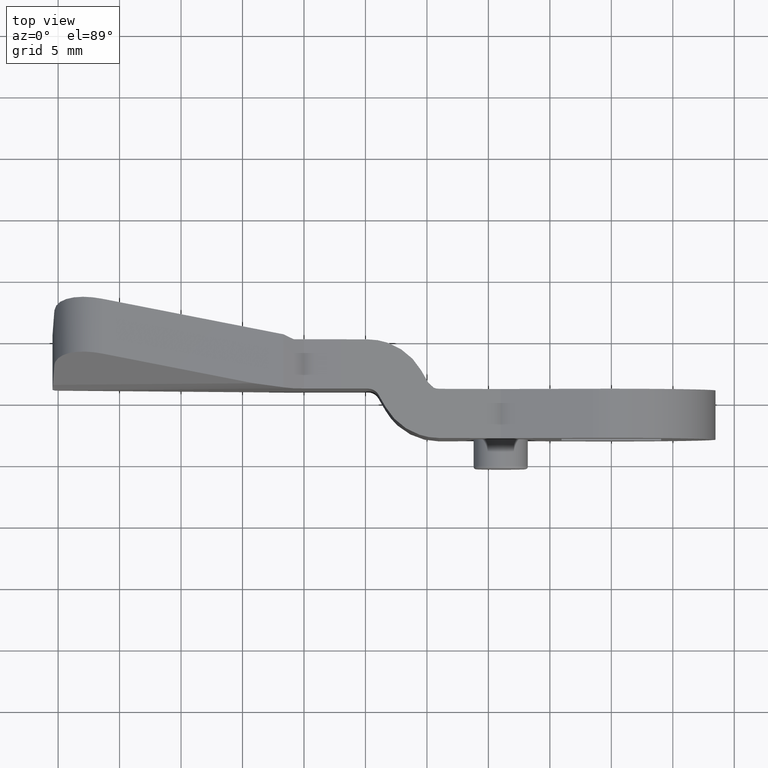
[diagram: clean part render]
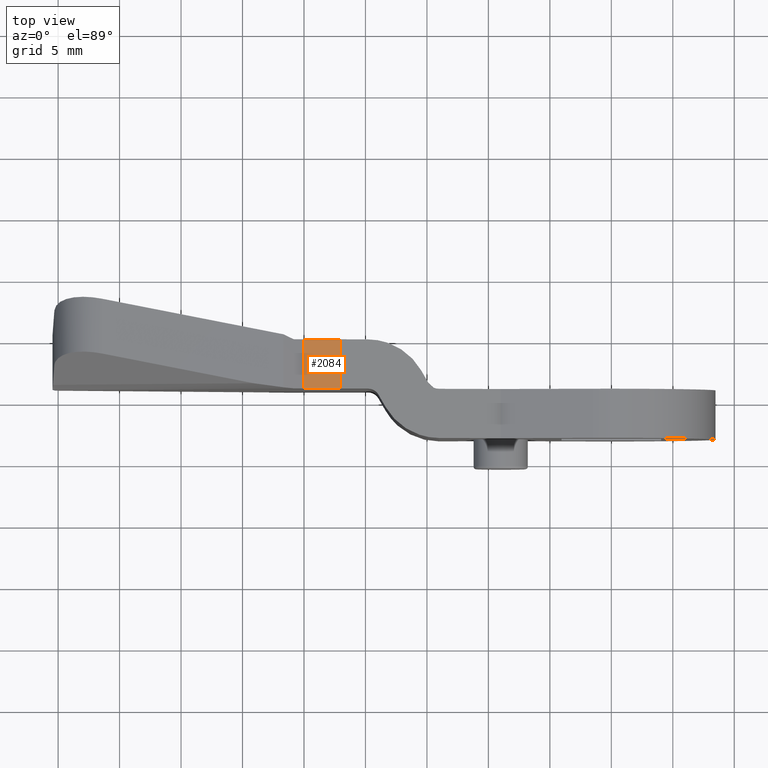
[diagram: same view with one face highlighted and labeled with its STEP entity id]
A machine part, top view. The second image highlights one B-rep face of the part: STEP entity #2084.
In plain terms, the highlighted face is a freeform B-spline surface patch.
Its self-contained STEP definition (entity closure, byte-faithful):
#1782=CARTESIAN_POINT('',(-25.000001187432851,-4.000000189989695,9.500000451225802));
#1783=VERTEX_POINT('',#1782);
#1789=CARTESIAN_POINT('',(-25.000001187432851,0.0,9.500000451225802));
#1790=VERTEX_POINT('',#1789);
#1791=CARTESIAN_POINT('',(-25.000001187432851,-4.000000189989695,9.500000451225802));
#1792=CARTESIAN_POINT('',(-25.000001187432851,0.0,9.500000451225802));
#1793=QUASI_UNIFORM_CURVE('',1,(#1791,#1792),.UNSPECIFIED.,.F.,.U.);
#1794=EDGE_CURVE('',#1783,#1790,#1793,.T.);
#2022=CARTESIAN_POINT('',(-22.000001044943499,1.110223E-013,9.500000451225791));
#2023=VERTEX_POINT('',#2022);
#2029=CARTESIAN_POINT('',(-22.000001044943499,-4.000000189989695,9.500000451225791));
#2030=VERTEX_POINT('',#2029);
#2031=CARTESIAN_POINT('',(-22.000001044943499,1.110223E-013,9.500000451225791));
#2032=CARTESIAN_POINT('',(-22.000001044943499,-4.000000189989695,9.500000451225791));
#2033=QUASI_UNIFORM_CURVE('',1,(#2031,#2032),.UNSPECIFIED.,.F.,.U.);
#2034=EDGE_CURVE('',#2023,#2030,#2033,.T.);
#2065=CARTESIAN_POINT('',(-25.149851906233259,-4.199800003981210,9.500000451225802));
#2066=CARTESIAN_POINT('',(-21.850151828180209,-4.199800003981210,9.500000451225802));
#2067=CARTESIAN_POINT('',(-25.149851906233259,0.199800100093935,9.500000451225802));
#2068=CARTESIAN_POINT('',(-21.850151828180209,0.199800100093935,9.500000451225802));
#2069=B_SPLINE_SURFACE_WITH_KNOTS('',1,1,((#2065,#2067),(#2066,#2068)),.UNSPECIFIED.,.F.,.F.,.U.,(2,2),(2,2),(0.0,3.299700078053050),(0.0,4.399600104075145),.UNSPECIFIED.);
#2070=CARTESIAN_POINT('',(-25.000001187432851,-4.000000189989695,9.500000451225802));
#2071=CARTESIAN_POINT('',(-22.000001044943499,-4.000000189989695,9.500000451225791));
#2072=QUASI_UNIFORM_CURVE('',1,(#2070,#2071),.UNSPECIFIED.,.F.,.U.);
#2073=EDGE_CURVE('',#1783,#2030,#2072,.T.);
#2074=ORIENTED_EDGE('',*,*,#2073,.T.);
#2075=ORIENTED_EDGE('',*,*,#2034,.F.);
#2076=CARTESIAN_POINT('',(-25.000001187432851,0.0,9.500000451225802));
#2077=CARTESIAN_POINT('',(-22.000001044943499,1.110223E-013,9.500000451225791));
#2078=QUASI_UNIFORM_CURVE('',1,(#2076,#2077),.UNSPECIFIED.,.F.,.U.);
#2079=EDGE_CURVE('',#1790,#2023,#2078,.T.);
#2080=ORIENTED_EDGE('',*,*,#2079,.F.);
#2081=ORIENTED_EDGE('',*,*,#1794,.F.);
#2082=EDGE_LOOP('',(#2074,#2075,#2080,#2081));
#2083=FACE_OUTER_BOUND('',#2082,.T.);
#2084=ADVANCED_FACE('',(#2083),#2069,.T.);